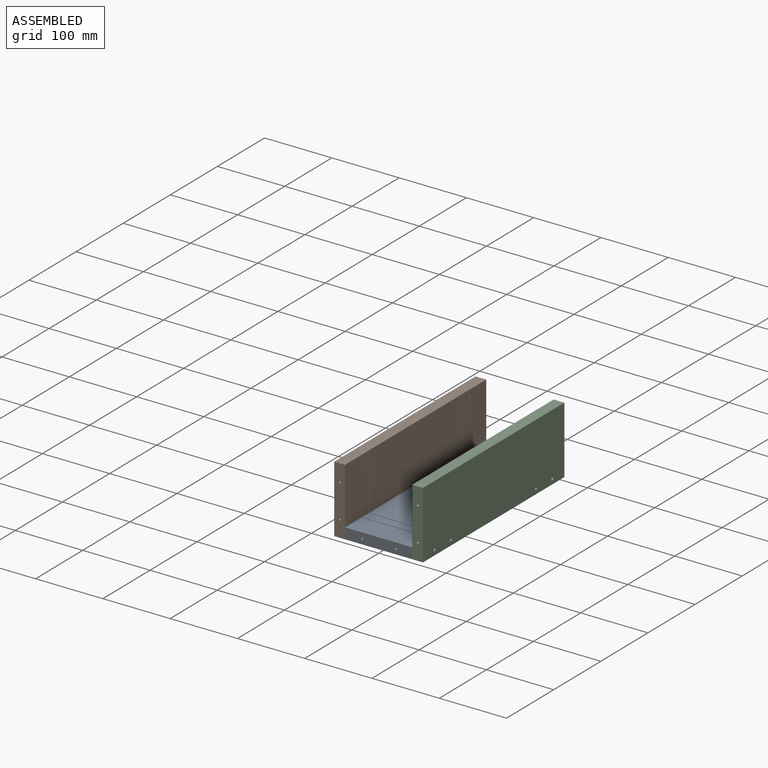
[diagram: assembled view]
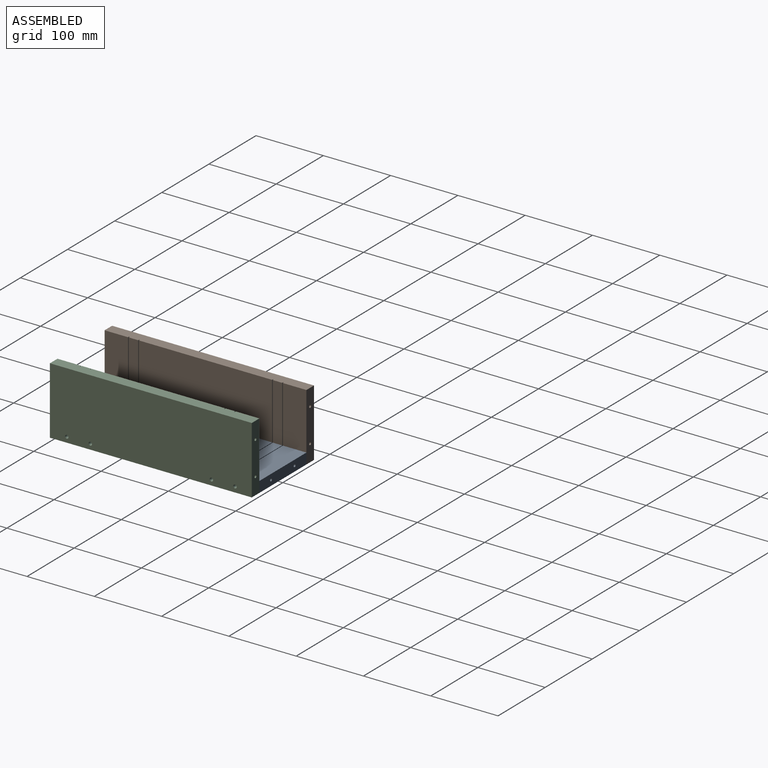
[diagram: assembled view, second angle]
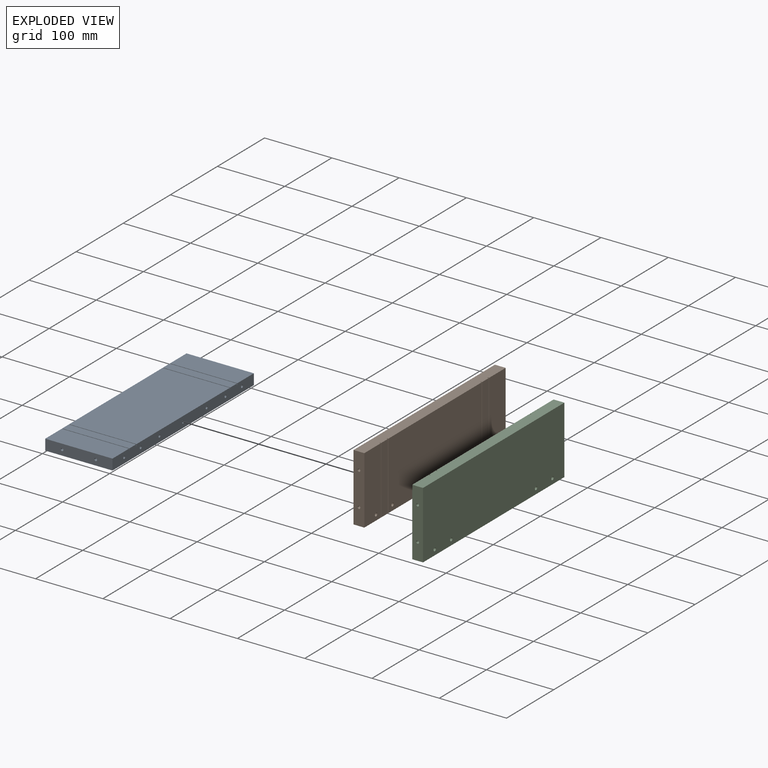
[diagram: exploded view]
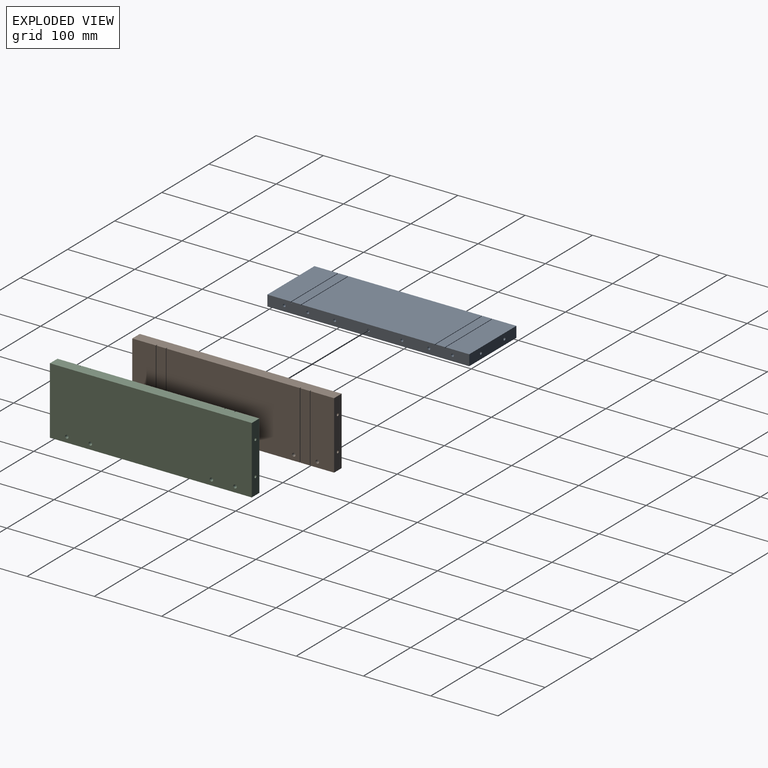
[diagram: exploded view, second angle]
ASSEMBLY  parts=3 mates=6
PART A: 58 faces, bbox 300x100x16 mm
  f0: plane 100x14mm, normal (0,0,1), area 1400mm2, adj f4,f5,f52,f57
  f1: plane 198x100mm, normal (0,0,1), area 19800mm2, adj f4,f5,f50,f54
  f2: plane 100x14mm, normal (0,0,1), area 1400mm2, adj f4,f5,f46,f49
  f3: plane 100x35mm, normal (0,0,1), area 3500mm2, adj f4,f5,f6,f48
  f4: plane 300x16mm, normal (0,1,0), area 4704mm2, adj f0,f1,f2,f3,f6,f7,f8,f9
  f5: plane 300x16mm, normal (0,-1,0), area 4704mm2, adj f0,f1,f2,f3,f6,f7,f8,f9
  f6: plane 100x16mm, normal (-1,0,0), area 1574.9mm2, adj f3,f4,f5,f9,f29,f31
  f7: plane 100x16mm, normal (1,0,0), area 1574.9mm2, adj f4,f5,f8,f9,f11,f13
  f8: plane 100x35mm, normal (0,0,1), area 3500mm2, adj f4,f5,f7,f55
  f9: plane 300x100mm, normal (0,0,-1), area 30000mm2, adj f4,f5,f6,f7
  f10: cone r=0mm half-angle=59deg, axis (1,0,0), area 14.7mm2, adj f11
  f11: cylinder r=2mm len=15mm, axis (1,0,0), area 188.5mm2, adj f7,f10
  f12: cone r=0mm half-angle=59deg, axis (1,0,0), area 14.7mm2, adj f13
  f13: cylinder r=2mm len=15mm, axis (1,0,0), area 188.5mm2, adj f7,f12
  f14: cone r=0mm half-angle=59deg, axis (0,-1,0), area 14.7mm2, adj f15
  f15: cylinder r=2mm len=15mm, axis (0,-1,0), area 188.5mm2, adj f5,f14
  f16: cone r=0mm half-angle=59deg, axis (0,-1,0), area 14.7mm2, adj f17
  f17: cylinder r=2mm len=15mm, axis (0,-1,0), area 188.5mm2, adj f5,f16
  f18: cone r=0mm half-angle=59deg, axis (0,-1,0), area 14.7mm2, adj f19
  f19: cylinder r=2mm len=15mm, axis (0,-1,0), area 188.5mm2, adj f5,f18
  f20: cone r=0mm half-angle=59deg, axis (0,-1,0), area 14.7mm2, adj f21
  f21: cylinder r=2mm len=15mm, axis (0,-1,0), area 188.5mm2, adj f5,f20
  f22: cone r=0mm half-angle=59deg, axis (0,-1,0), area 14.7mm2, adj f23
  f23: cylinder r=2mm len=15mm, axis (0,-1,0), area 188.5mm2, adj f5,f22
  f24: cone r=0mm half-angle=59deg, axis (0,-1,0), area 14.7mm2, adj f25
  f25: cylinder r=2mm len=15mm, axis (0,-1,0), area 188.5mm2, adj f5,f24
  f26: cone r=0mm half-angle=59deg, axis (0,-1,0), area 14.7mm2, adj f27
  f27: cylinder r=2mm len=15mm, axis (0,-1,0), area 188.5mm2, adj f5,f26
  f28: cone r=0mm half-angle=59deg, axis (-1,0,0), area 14.7mm2, adj f29
  f29: cylinder r=2mm len=15mm, axis (-1,0,0), area 188.5mm2, adj f6,f28
  f30: cone r=0mm half-angle=59deg, axis (-1,0,0), area 14.7mm2, adj f31
  f31: cylinder r=2mm len=15mm, axis (-1,0,0), area 188.5mm2, adj f6,f30
  f32: cone r=0mm half-angle=59deg, axis (0,1,0), area 14.7mm2, adj f33
  f33: cylinder r=2mm len=15mm, axis (0,1,0), area 188.5mm2, adj f4,f32
  f34: cone r=0mm half-angle=59deg, axis (0,1,0), area 14.7mm2, adj f35
  f35: cylinder r=2mm len=15mm, axis (0,1,0), area 188.5mm2, adj f4,f34
  f36: cone r=0mm half-angle=59deg, axis (0,1,0), area 14.7mm2, adj f37
  f37: cylinder r=2mm len=15mm, axis (0,1,0), area 188.5mm2, adj f4,f36
  f38: cone r=0mm half-angle=59deg, axis (0,1,0), area 14.7mm2, adj f39
  f39: cylinder r=2mm len=15mm, axis (0,1,0), area 188.5mm2, adj f4,f38
  f40: cone r=0mm half-angle=59deg, axis (0,1,0), area 14.7mm2, adj f41
  f41: cylinder r=2mm len=15mm, axis (0,1,0), area 188.5mm2, adj f4,f40
  f42: cone r=0mm half-angle=59deg, axis (0,1,0), area 14.7mm2, adj f43
  f43: cylinder r=2mm len=15mm, axis (0,1,0), area 188.5mm2, adj f4,f42
  f44: cone r=0mm half-angle=59deg, axis (0,1,0), area 14.7mm2, adj f45
  f45: cylinder r=2mm len=15mm, axis (0,1,0), area 188.5mm2, adj f4,f44
  f46: plane 100x2mm, normal (-1,0,0), area 200mm2, adj f2,f4,f5,f47
  f47: plane 100x1mm, normal (0,0,1), area 100mm2, adj f4,f5,f46,f48
  f48: plane 100x2mm, normal (1,0,0), area 200mm2, adj f3,f4,f5,f47
  f49: plane 100x2mm, normal (1,0,0), area 200mm2, adj f2,f4,f5,f51
  f50: plane 100x2mm, normal (-1,0,0), area 200mm2, adj f1,f4,f5,f51
  f51: plane 100x1mm, normal (0,0,1), area 100mm2, adj f4,f5,f49,f50
  f52: plane 100x2mm, normal (-1,0,0), area 200mm2, adj f0,f4,f5,f53
  f53: plane 100x1mm, normal (0,0,1), area 100mm2, adj f4,f5,f52,f54
  f54: plane 100x2mm, normal (1,0,0), area 200mm2, adj f1,f4,f5,f53
  f55: plane 100x2mm, normal (-1,0,0), area 200mm2, adj f4,f5,f8,f56
  f56: plane 100x1mm, normal (0,0,1), area 100mm2, adj f4,f5,f55,f57
  f57: plane 100x2mm, normal (1,0,0), area 200mm2, adj f0,f4,f5,f56
PART B: 34 faces, bbox 300x100x16 mm
  f0: plane 100x14mm, normal (0,0,1), area 1400mm2, adj f4,f5,f16,f21
  f1: plane 198x100mm, normal (0,0,1), area 19760.7mm2, adj f4,f5,f14,f18,f22,f24
  f2: plane 100x14mm, normal (0,0,1), area 1400mm2, adj f4,f5,f10,f13
  f3: plane 100x35mm, normal (0,0,1), area 3480.4mm2, adj f4,f5,f6,f12,f25
  f4: plane 300x16mm, normal (0,1,0), area 4792mm2, adj f0,f1,f2,f3,f6,f7,f8,f9
  f5: plane 300x16mm, normal (0,-1,0), area 4792mm2, adj f0,f1,f2,f3,f6,f7,f8,f9
  f6: plane 100x16mm, normal (-1,0,0), area 1574.9mm2, adj f3,f4,f5,f9,f31,f33
  f7: plane 100x16mm, normal (1,0,0), area 1574.9mm2, adj f4,f5,f8,f9,f27,f29
  f8: plane 100x35mm, normal (0,0,1), area 3480.4mm2, adj f4,f5,f7,f19,f23
  f9: plane 300x100mm, normal (0,0,-1), area 29921.5mm2, adj f4,f5,f6,f7,f22,f23,f24,f25
  f10: plane 100x2mm, normal (-1,0,0), area 200mm2, adj f2,f4,f5,f11
  f11: plane 100x1mm, normal (0,0,1), area 100mm2, adj f4,f5,f10,f12
  f12: plane 100x2mm, normal (1,0,0), area 200mm2, adj f3,f4,f5,f11
  f13: plane 100x2mm, normal (1,0,0), area 200mm2, adj f2,f4,f5,f15
  f14: plane 100x2mm, normal (-1,0,0), area 200mm2, adj f1,f4,f5,f15
  f15: plane 100x1mm, normal (0,0,1), area 100mm2, adj f4,f5,f13,f14
  f16: plane 100x2mm, normal (-1,0,0), area 200mm2, adj f0,f4,f5,f17
  f17: plane 100x1mm, normal (0,0,1), area 100mm2, adj f4,f5,f16,f18
  f18: plane 100x2mm, normal (1,0,0), area 200mm2, adj f1,f4,f5,f17
  f19: plane 100x2mm, normal (-1,0,0), area 200mm2, adj f4,f5,f8,f20
  f20: plane 100x1mm, normal (0,0,1), area 100mm2, adj f4,f5,f19,f21
  f21: plane 100x2mm, normal (1,0,0), area 200mm2, adj f0,f4,f5,f20
  f22: cylinder r=2.5mm len=16mm, axis (0,0,1), area 251.3mm2, adj f1,f9
  f23: cylinder r=2.5mm len=16mm, axis (0,0,1), area 251.3mm2, adj f8,f9
  f24: cylinder r=2.5mm len=16mm, axis (0,0,1), area 251.3mm2, adj f1,f9
  f25: cylinder r=2.5mm len=16mm, axis (0,0,1), area 251.3mm2, adj f3,f9
  f26: cone r=0mm half-angle=59deg, axis (1,0,0), area 14.7mm2, adj f27
  f27: cylinder r=2mm len=15mm, axis (1,0,0), area 188.5mm2, adj f7,f26
  f28: cone r=0mm half-angle=59deg, axis (1,0,0), area 14.7mm2, adj f29
  f29: cylinder r=2mm len=15mm, axis (1,0,0), area 188.5mm2, adj f7,f28
  f30: cone r=0mm half-angle=59deg, axis (-1,0,0), area 14.7mm2, adj f31
  f31: cylinder r=2mm len=15mm, axis (-1,0,0), area 188.5mm2, adj f6,f30
  f32: cone r=0mm half-angle=59deg, axis (-1,0,0), area 14.7mm2, adj f33
  f33: cylinder r=2mm len=15mm, axis (-1,0,0), area 188.5mm2, adj f6,f32
PART C: same geometry as B
PLACE A rot(axis=(0,0,-1),90deg) t=(-0.25,-150,8)mm
PLACE B rot(axis=(0.58,0.58,0.58),120deg) t=(-58.25,-150,50)mm
PLACE C rot(axis=(0.58,-0.58,-0.58),120deg) t=(57.75,-150,50)mm
MATE planar C.f1 <-> A.f36  axis (-1,0,0) through (49.75,-150,50.08)mm
MATE planar B.f32 <-> A.f7  axis (0,-1,0) through (-58.25,-300,25)mm
MATE planar A.f9 <-> C.f5  axis (0,0,-1) through (-0.25,-150,0)mm
MATE planar A.f5 <-> B.f1  axis (-1,0,0) through (-50.25,-150,7.99)mm
MATE planar B.f5 <-> A.f9  axis (0,0,-1) through (-58.26,-150,0)mm
MATE planar C.f26 <-> A.f7  axis (0,-1,0) through (57.75,-300,25)mm
